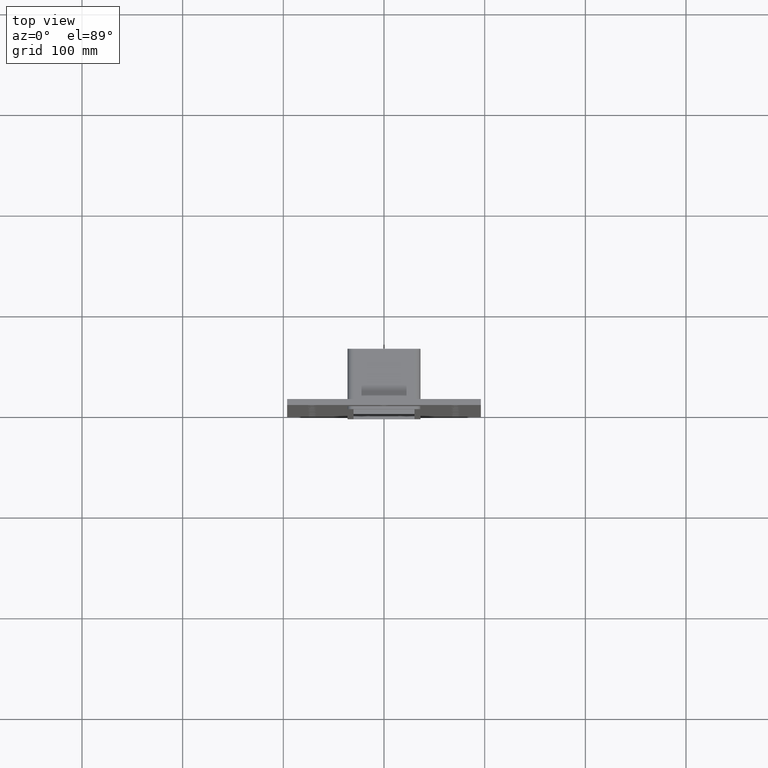
[diagram: clean part render]
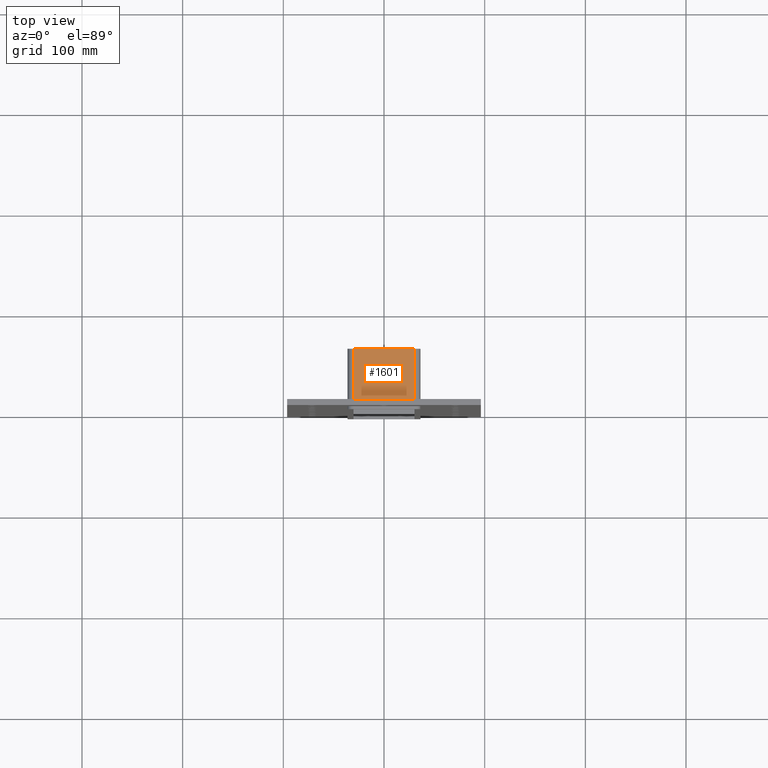
[diagram: same view with one face highlighted and labeled with its STEP entity id]
A machine part, top view. The second image highlights one B-rep face of the part: STEP entity #1601.
In plain terms, the highlighted planar face has unit normal (0, 0, 1).
Its self-contained STEP definition (entity closure, byte-faithful):
#874=CARTESIAN_POINT('',(30.250000000000004,6.000000000000001,289.0));
#875=VERTEX_POINT('',#874);
#883=CARTESIAN_POINT('',(-30.250000000000004,6.000000000000001,289.0));
#884=VERTEX_POINT('',#883);
#885=CARTESIAN_POINT('',(-30.250000000000007,6.000000000000001,289.0));
#886=DIRECTION('',(1.0,0.0,0.0));
#887=VECTOR('',#886,60.5);
#888=LINE('',#885,#887);
#889=EDGE_CURVE('',#884,#875,#888,.T.);
#1218=CARTESIAN_POINT('',(30.25,57.0,289.0));
#1219=VERTEX_POINT('',#1218);
#1227=CARTESIAN_POINT('',(30.250000000000004,57.0,289.0));
#1228=DIRECTION('',(0.0,-1.0,0.0));
#1229=VECTOR('',#1228,51.0);
#1230=LINE('',#1227,#1229);
#1231=EDGE_CURVE('',#1219,#875,#1230,.T.);
#1566=CARTESIAN_POINT('',(-30.250000000000004,57.0,289.0));
#1567=VERTEX_POINT('',#1566);
#1568=CARTESIAN_POINT('',(-30.250000000000004,6.000000000000001,289.0));
#1569=DIRECTION('',(0.0,1.0,0.0));
#1570=VECTOR('',#1569,51.0);
#1571=LINE('',#1568,#1570);
#1572=EDGE_CURVE('',#884,#1567,#1571,.T.);
#1585=CARTESIAN_POINT('',(-36.250000000000007,0.0,289.0));
#1586=DIRECTION('',(0.0,0.0,1.0));
#1587=DIRECTION('',(1.0,0.0,0.0));
#1588=AXIS2_PLACEMENT_3D('',#1585,#1586,#1587);
#1589=PLANE('',#1588);
#1590=ORIENTED_EDGE('',*,*,#889,.T.);
#1591=ORIENTED_EDGE('',*,*,#1231,.F.);
#1592=CARTESIAN_POINT('',(-30.250000000000007,57.0,289.0));
#1593=DIRECTION('',(1.0,0.0,0.0));
#1594=VECTOR('',#1593,60.5);
#1595=LINE('',#1592,#1594);
#1596=EDGE_CURVE('',#1567,#1219,#1595,.T.);
#1597=ORIENTED_EDGE('',*,*,#1596,.F.);
#1598=ORIENTED_EDGE('',*,*,#1572,.F.);
#1599=EDGE_LOOP('',(#1590,#1591,#1597,#1598));
#1600=FACE_OUTER_BOUND('',#1599,.T.);
#1601=ADVANCED_FACE('',(#1600),#1589,.T.);